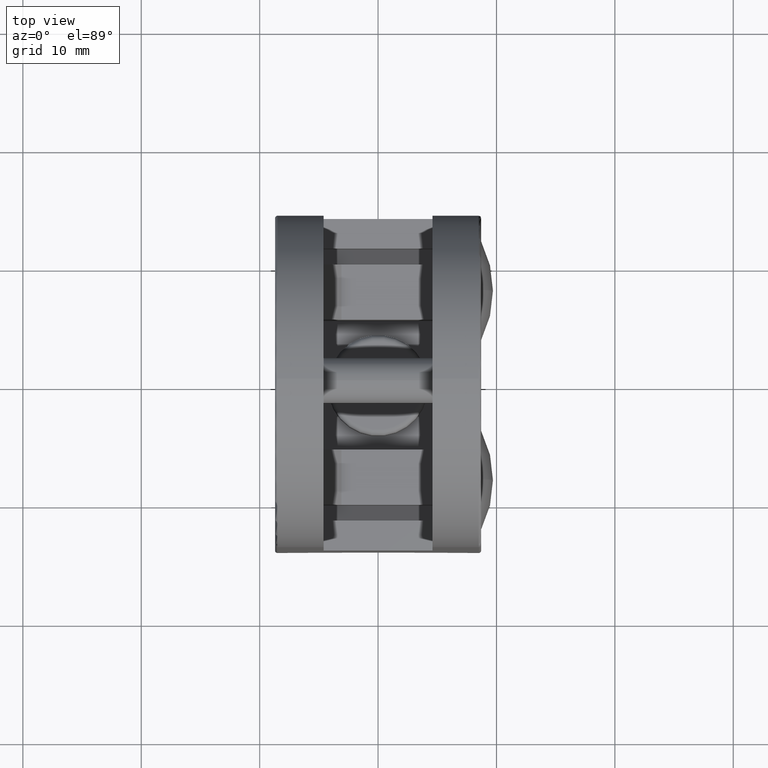
[diagram: clean part render]
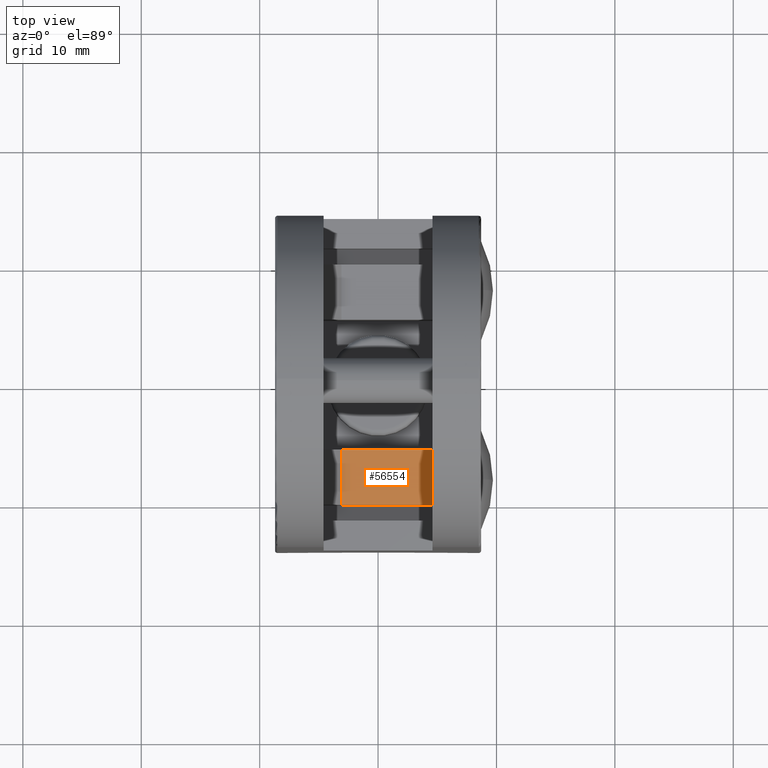
[diagram: same view with one face highlighted and labeled with its STEP entity id]
A machine part, top view. The second image highlights one B-rep face of the part: STEP entity #56554.
In plain terms, the highlighted planar face has unit normal (0, 0, -1).
Its self-contained STEP definition (entity closure, byte-faithful):
#4490 = CARTESIAN_POINT ( 'NONE',  ( 13.29999999999999900, -10.14999999999999900, 10.49999999999999500 ) ) ;
#6959 = VERTEX_POINT ( 'NONE', #47326 ) ;
#7113 = EDGE_CURVE ( 'NONE', #55605, #40846, #45450, .T. ) ;
#7536 = CARTESIAN_POINT ( 'NONE',  ( 5.599999999999998800, -5.500000000000001800, 10.49999999999999600 ) ) ;
#8326 = PLANE ( 'NONE',  #40457 ) ;
#8376 = EDGE_LOOP ( 'NONE', ( #30957, #50832, #29112, #44198 ) ) ;
#11694 = CARTESIAN_POINT ( 'NONE',  ( 13.29999999999999900, -10.14999999999999900, 10.49999999999999500 ) ) ;
#13969 = VECTOR ( 'NONE', #50156, 1000.000000000000000 ) ;
#16516 = DIRECTION ( 'NONE',  ( -1.000000000000000000, 0.0000000000000000000, -0.0000000000000000000 ) ) ;
#18998 = EDGE_CURVE ( 'NONE', #6959, #21355, #23148, .T. ) ;
#20480 = DIRECTION ( 'NONE',  ( -0.0000000000000000000, -1.000000000000000000, -0.0000000000000000000 ) ) ;
#21053 = LINE ( 'NONE', #46327, #52499 ) ;
#21355 = VERTEX_POINT ( 'NONE', #4490 ) ;
#22945 = VECTOR ( 'NONE', #53862, 1000.000000000000000 ) ;
#22977 = EDGE_CURVE ( 'NONE', #6959, #55605, #56437, .T. ) ;
#23148 = LINE ( 'NONE', #11694, #47735 ) ;
#27780 = FACE_OUTER_BOUND ( 'NONE', #8376, .T. ) ;
#29112 = ORIENTED_EDGE ( 'NONE', *, *, #47104, .F. ) ;
#30957 = ORIENTED_EDGE ( 'NONE', *, *, #22977, .T. ) ;
#35909 = CARTESIAN_POINT ( 'NONE',  ( 13.29999999999999900, -5.500000000000000900, 10.49999999999999500 ) ) ;
#38878 = CARTESIAN_POINT ( 'NONE',  ( 13.29999999999999900, -10.14999999999999900, 10.49999999999999500 ) ) ;
#40457 = AXIS2_PLACEMENT_3D ( 'NONE', #38878, #42711, #16516 ) ;
#40846 = VERTEX_POINT ( 'NONE', #49937 ) ;
#41769 = CARTESIAN_POINT ( 'NONE',  ( 5.599999999999998800, -3.378679656440358500, 10.49999999999999600 ) ) ;
#42711 = DIRECTION ( 'NONE',  ( 0.0000000000000000000, 0.0000000000000000000, -1.000000000000000000 ) ) ;
#44198 = ORIENTED_EDGE ( 'NONE', *, *, #18998, .F. ) ;
#45450 = LINE ( 'NONE', #41769, #13969 ) ;
#46135 = DIRECTION ( 'NONE',  ( -1.000000000000000000, -0.0000000000000000000, -0.0000000000000000000 ) ) ;
#46327 = CARTESIAN_POINT ( 'NONE',  ( 13.29999999999999900, -10.14999999999999900, 10.49999999999999500 ) ) ;
#47104 = EDGE_CURVE ( 'NONE', #21355, #40846, #21053, .T. ) ;
#47326 = CARTESIAN_POINT ( 'NONE',  ( 13.29999999999999900, -5.500000000000000900, 10.49999999999999500 ) ) ;
#47735 = VECTOR ( 'NONE', #20480, 1000.000000000000000 ) ;
#49937 = CARTESIAN_POINT ( 'NONE',  ( 5.599999999999998800, -10.14999999999999900, 10.49999999999999600 ) ) ;
#50156 = DIRECTION ( 'NONE',  ( -0.0000000000000000000, -1.000000000000000000, 0.0000000000000000000 ) ) ;
#50832 = ORIENTED_EDGE ( 'NONE', *, *, #7113, .T. ) ;
#52499 = VECTOR ( 'NONE', #46135, 1000.000000000000000 ) ;
#53862 = DIRECTION ( 'NONE',  ( -1.000000000000000000, -0.0000000000000000000, -0.0000000000000000000 ) ) ;
#55605 = VERTEX_POINT ( 'NONE', #7536 ) ;
#56437 = LINE ( 'NONE', #35909, #22945 ) ;
#56554 = ADVANCED_FACE ( 'NONE', ( #27780 ), #8326, .F. ) ;